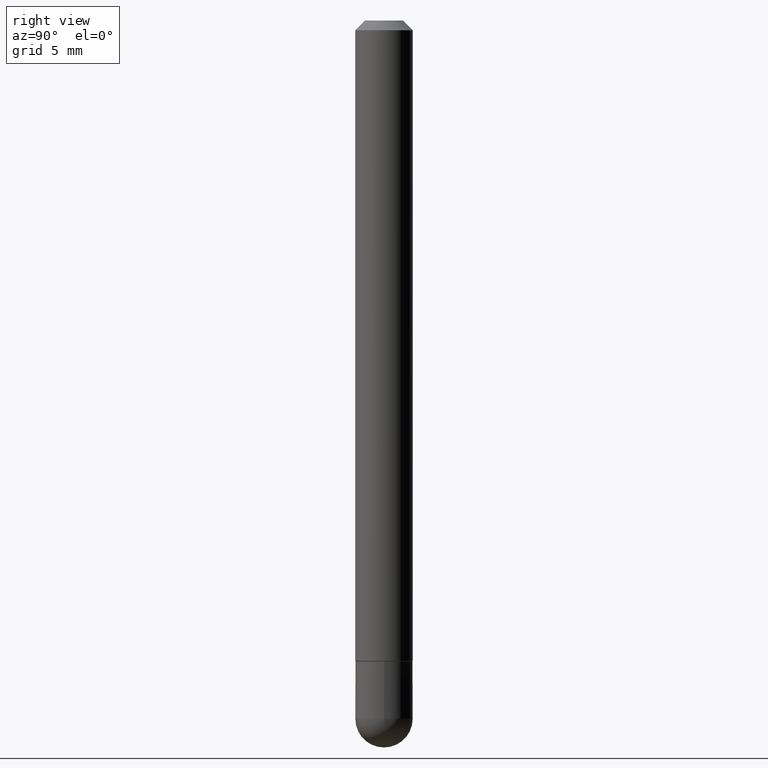
[diagram: clean part render]
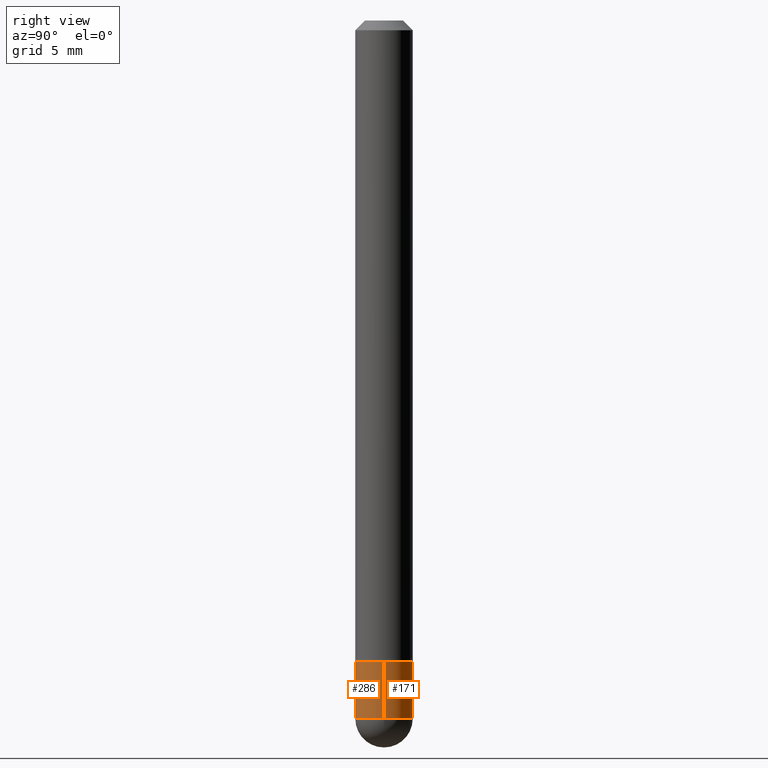
[diagram: same view with one multi-face feature highlighted, each face labeled with its STEP entity id]
A machine part, right view. The highlighted faces form ONE feature: a constant-radius fillet chain: 2 tangent blend faces with common blend radius 1.4999 mm. The faces share edges in the B-rep.
Their STEP definitions:
[1] entity #171 (Cylinder):
#7 = AXIS2_PLACEMENT_3D ( 'NONE', #25, #106, #163 ) ;
#9 = AXIS2_PLACEMENT_3D ( 'NONE', #361, #230, #228 ) ;
#16 = CARTESIAN_POINT ( 'NONE',  ( 0.05904999999999999832, -5.017258683917598472E-15, -1.318899999999999961 ) ) ;
#17 = CARTESIAN_POINT ( 'NONE',  ( -0.05905000000000001914, -4.391598512426043974E-15, -1.437049999999999939 ) ) ;
#25 = CARTESIAN_POINT ( 'NONE',  ( 3.514260947928350449E-29, -5.017433257984542594E-15, -1.437049999999999939 ) ) ;
#27 = CIRCLE ( 'NONE', #7, 0.05905000000000000526 ) ;
#52 = CARTESIAN_POINT ( 'NONE',  ( 0.05905000000000001914, -5.223517944009757599E-15, -1.437049999999999939 ) ) ;
#57 = CARTESIAN_POINT ( 'NONE',  ( 0.000000000000000000, 0.000000000000000000, 0.000000000000000000 ) ) ;
#75 = ORIENTED_EDGE ( 'NONE', *, *, #155, .T. ) ;
#80 = DIRECTION ( 'NONE',  ( -2.445468806185136877E-29, 3.491481338843145188E-15, 1.000000000000000000 ) ) ;
#86 = DIRECTION ( 'NONE',  ( 1.000000000000000000, -6.982962677686266711E-15, 4.876176775795936353E-29 ) ) ;
#97 = ORIENTED_EDGE ( 'NONE', *, *, #220, .F. ) ;
#99 = CIRCLE ( 'NONE', #293, 0.05904999999999999832 ) ;
#106 = DIRECTION ( 'NONE',  ( -2.445468806185136597E-29, 3.491481338843145583E-15, 1.000000000000000000 ) ) ;
#117 = DIRECTION ( 'NONE',  ( 1.000000000000000000, -6.982962677686273021E-15, 0.000000000000000000 ) ) ;
#121 = CARTESIAN_POINT ( 'NONE',  ( -0.05904999999999999832, 4.195754854663391478E-16, -2.904631170795521892E-30 ) ) ;
#123 = DIRECTION ( 'NONE',  ( -2.445468806185136597E-29, 3.491481338843145583E-15, 1.000000000000000000 ) ) ;
#128 = VERTEX_POINT ( 'NONE', #282 ) ;
#145 = EDGE_CURVE ( 'NONE', #364, #128, #99, .T. ) ;
#155 = EDGE_CURVE ( 'NONE', #202, #128, #281, .T. ) ;
#163 = DIRECTION ( 'NONE',  ( 1.000000000000000000, -6.982962677686272233E-15, 0.000000000000000000 ) ) ;
#171 = ADVANCED_FACE ( 'NONE', ( #350 ), #378, .T. ) ;
#174 = CARTESIAN_POINT ( 'NONE',  ( 0.05904999999999999832, -4.123439461173740327E-16, 2.879382386107500220E-30 ) ) ;
#193 = VERTEX_POINT ( 'NONE', #52 ) ;
#202 = VERTEX_POINT ( 'NONE', #17 ) ;
#206 = EDGE_LOOP ( 'NONE', ( #305, #75, #393, #97, #375 ) ) ;
#211 = VERTEX_POINT ( 'NONE', #212 ) ;
#212 = CARTESIAN_POINT ( 'NONE',  ( 4.123439461174083974E-16, 0.05904999999999487742, -1.437050000000000161 ) ) ;
#220 = EDGE_CURVE ( 'NONE', #193, #364, #277, .T. ) ;
#228 = DIRECTION ( 'NONE',  ( 1.000000000000000000, -6.982962677686272233E-15, 0.000000000000000000 ) ) ;
#230 = DIRECTION ( 'NONE',  ( -2.445468806185136597E-29, 3.491481338843145583E-15, 1.000000000000000000 ) ) ;
#246 = DIRECTION ( 'NONE',  ( -2.445468806185136877E-29, 3.491481338843145188E-15, 1.000000000000000000 ) ) ;
#250 = DIRECTION ( 'NONE',  ( -2.445468806185136597E-29, 3.491481338843145583E-15, 1.000000000000000000 ) ) ;
#258 = EDGE_CURVE ( 'NONE', #193, #211, #27, .T. ) ;
#277 = LINE ( 'NONE', #174, #278 ) ;
#278 = VECTOR ( 'NONE', #80, 39.37007874015748143 ) ;
#281 = LINE ( 'NONE', #121, #341 ) ;
#282 = CARTESIAN_POINT ( 'NONE',  ( -0.05904999999999999832, -4.391598512426043974E-15, -1.318899999999999961 ) ) ;
#293 = AXIS2_PLACEMENT_3D ( 'NONE', #407, #123, #117 ) ;
#305 = ORIENTED_EDGE ( 'NONE', *, *, #357, .T. ) ;
#340 = CIRCLE ( 'NONE', #9, 0.05905000000000000526 ) ;
#341 = VECTOR ( 'NONE', #246, 39.37007874015748143 ) ;
#350 = FACE_OUTER_BOUND ( 'NONE', #206, .T. ) ;
#357 = EDGE_CURVE ( 'NONE', #211, #202, #340, .T. ) ;
#361 = CARTESIAN_POINT ( 'NONE',  ( 3.514260947928350449E-29, -5.017433257984542594E-15, -1.437049999999999939 ) ) ;
#364 = VERTEX_POINT ( 'NONE', #16 ) ;
#375 = ORIENTED_EDGE ( 'NONE', *, *, #258, .T. ) ;
#378 = CYLINDRICAL_SURFACE ( 'NONE', #390, 0.05904999999999999832 ) ;
#390 = AXIS2_PLACEMENT_3D ( 'NONE', #57, #250, #86 ) ;
#393 = ORIENTED_EDGE ( 'NONE', *, *, #145, .F. ) ;
#407 = CARTESIAN_POINT ( 'NONE',  ( 3.225328808477576615E-29, -4.604914737800224341E-15, -1.318899999999999961 ) ) ;
[2] entity #286 (Cylinder):
#4 = ORIENTED_EDGE ( 'NONE', *, *, #90, .F. ) ;
#16 = CARTESIAN_POINT ( 'NONE',  ( 0.05904999999999999832, -5.017258683917598472E-15, -1.318899999999999961 ) ) ;
#17 = CARTESIAN_POINT ( 'NONE',  ( -0.05905000000000001914, -4.391598512426043974E-15, -1.437049999999999939 ) ) ;
#19 = EDGE_LOOP ( 'NONE', ( #255, #138, #236, #188, #4 ) ) ;
#22 = CIRCLE ( 'NONE', #399, 0.05905000000000000526 ) ;
#40 = DIRECTION ( 'NONE',  ( -2.445468806185136597E-29, 3.491481338843145583E-15, 1.000000000000000000 ) ) ;
#52 = CARTESIAN_POINT ( 'NONE',  ( 0.05905000000000001914, -5.223517944009757599E-15, -1.437049999999999939 ) ) ;
#73 = CYLINDRICAL_SURFACE ( 'NONE', #362, 0.05904999999999999832 ) ;
#77 = DIRECTION ( 'NONE',  ( 1.000000000000000000, -6.982962677686266711E-15, 4.876176775795936353E-29 ) ) ;
#80 = DIRECTION ( 'NONE',  ( -2.445468806185136877E-29, 3.491481338843145188E-15, 1.000000000000000000 ) ) ;
#84 = AXIS2_PLACEMENT_3D ( 'NONE', #312, #126, #346 ) ;
#90 = EDGE_CURVE ( 'NONE', #128, #364, #119, .T. ) ;
#107 = AXIS2_PLACEMENT_3D ( 'NONE', #112, #40, #161 ) ;
#112 = CARTESIAN_POINT ( 'NONE',  ( 3.514260947928350449E-29, -5.017433257984542594E-15, -1.437049999999999939 ) ) ;
#119 = CIRCLE ( 'NONE', #84, 0.05904999999999999832 ) ;
#121 = CARTESIAN_POINT ( 'NONE',  ( -0.05904999999999999832, 4.195754854663391478E-16, -2.904631170795521892E-30 ) ) ;
#126 = DIRECTION ( 'NONE',  ( -2.445468806185136597E-29, 3.491481338843145583E-15, 1.000000000000000000 ) ) ;
#128 = VERTEX_POINT ( 'NONE', #282 ) ;
#138 = ORIENTED_EDGE ( 'NONE', *, *, #248, .T. ) ;
#146 = DIRECTION ( 'NONE',  ( 1.000000000000000000, -6.982962677686272233E-15, 0.000000000000000000 ) ) ;
#155 = EDGE_CURVE ( 'NONE', #202, #128, #281, .T. ) ;
#160 = VERTEX_POINT ( 'NONE', #349 ) ;
#161 = DIRECTION ( 'NONE',  ( 1.000000000000000000, -6.982962677686272233E-15, 0.000000000000000000 ) ) ;
#174 = CARTESIAN_POINT ( 'NONE',  ( 0.05904999999999999832, -4.123439461173740327E-16, 2.879382386107500220E-30 ) ) ;
#188 = ORIENTED_EDGE ( 'NONE', *, *, #220, .T. ) ;
#193 = VERTEX_POINT ( 'NONE', #52 ) ;
#202 = VERTEX_POINT ( 'NONE', #17 ) ;
#220 = EDGE_CURVE ( 'NONE', #193, #364, #277, .T. ) ;
#227 = CIRCLE ( 'NONE', #107, 0.05905000000000000526 ) ;
#236 = ORIENTED_EDGE ( 'NONE', *, *, #358, .T. ) ;
#246 = DIRECTION ( 'NONE',  ( -2.445468806185136877E-29, 3.491481338843145188E-15, 1.000000000000000000 ) ) ;
#248 = EDGE_CURVE ( 'NONE', #202, #160, #22, .T. ) ;
#255 = ORIENTED_EDGE ( 'NONE', *, *, #155, .F. ) ;
#264 = CARTESIAN_POINT ( 'NONE',  ( 3.514260947928350449E-29, -5.017433257984542594E-15, -1.437049999999999939 ) ) ;
#277 = LINE ( 'NONE', #174, #278 ) ;
#278 = VECTOR ( 'NONE', #80, 39.37007874015748143 ) ;
#281 = LINE ( 'NONE', #121, #341 ) ;
#282 = CARTESIAN_POINT ( 'NONE',  ( -0.05904999999999999832, -4.391598512426043974E-15, -1.318899999999999961 ) ) ;
#286 = ADVANCED_FACE ( 'NONE', ( #367 ), #73, .T. ) ;
#307 = DIRECTION ( 'NONE',  ( -2.445468806185136597E-29, 3.491481338843145583E-15, 1.000000000000000000 ) ) ;
#312 = CARTESIAN_POINT ( 'NONE',  ( 3.225328808477576615E-29, -4.604914737800224341E-15, -1.318899999999999961 ) ) ;
#328 = CARTESIAN_POINT ( 'NONE',  ( 0.000000000000000000, 0.000000000000000000, 0.000000000000000000 ) ) ;
#332 = DIRECTION ( 'NONE',  ( -2.445468806185136597E-29, 3.491481338843145583E-15, 1.000000000000000000 ) ) ;
#341 = VECTOR ( 'NONE', #246, 39.37007874015748143 ) ;
#346 = DIRECTION ( 'NONE',  ( 1.000000000000000000, -6.982962677686273021E-15, 0.000000000000000000 ) ) ;
#349 = CARTESIAN_POINT ( 'NONE',  ( -4.195754854663065087E-16, -0.05905000000000538291, -1.437049999999999716 ) ) ;
#358 = EDGE_CURVE ( 'NONE', #160, #193, #227, .T. ) ;
#362 = AXIS2_PLACEMENT_3D ( 'NONE', #328, #332, #77 ) ;
#364 = VERTEX_POINT ( 'NONE', #16 ) ;
#367 = FACE_OUTER_BOUND ( 'NONE', #19, .T. ) ;
#399 = AXIS2_PLACEMENT_3D ( 'NONE', #264, #307, #146 ) ;